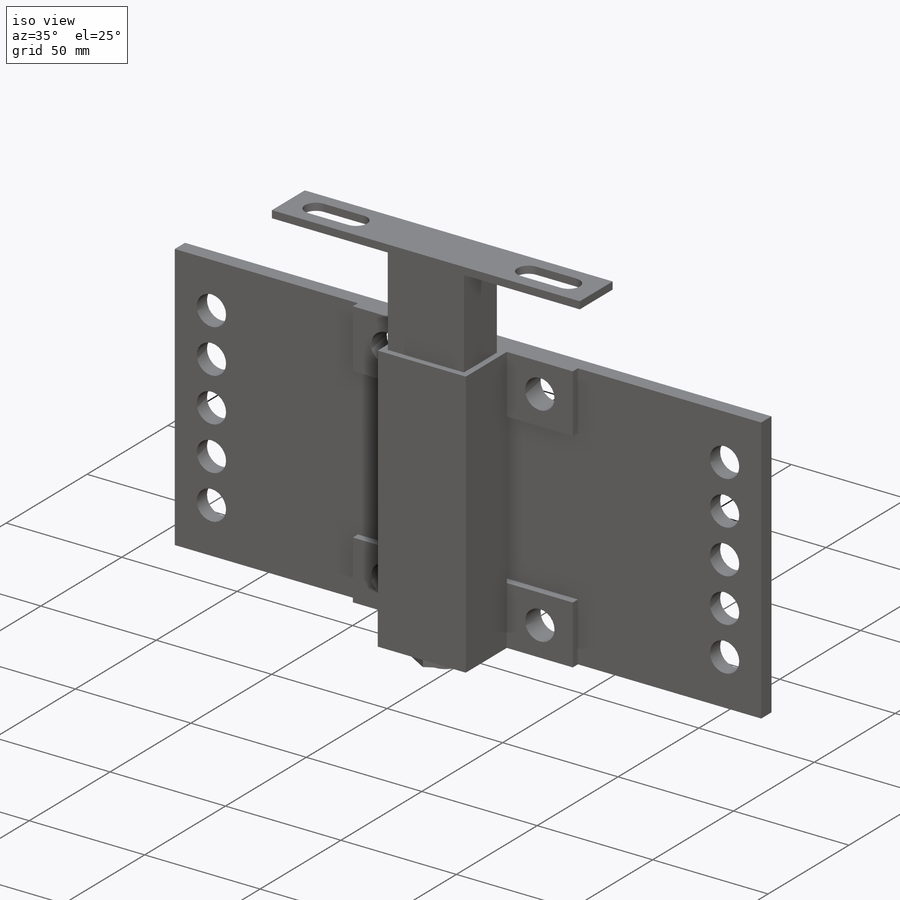
[diagram: iso view]
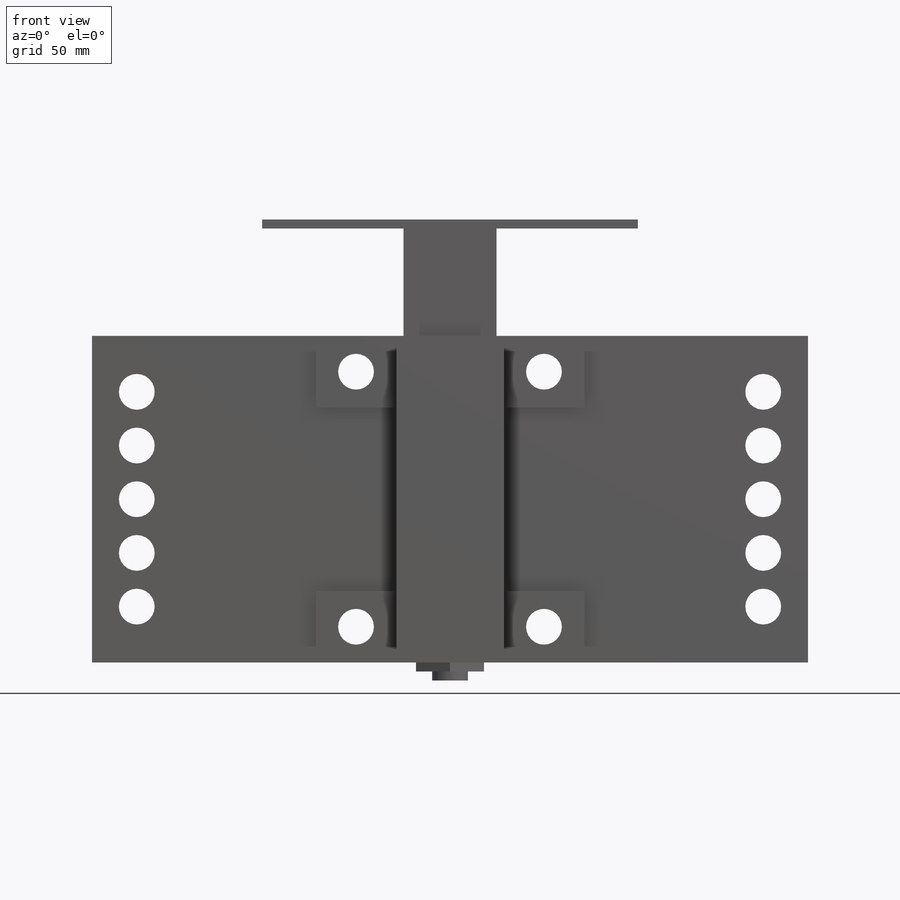
[diagram: front view]
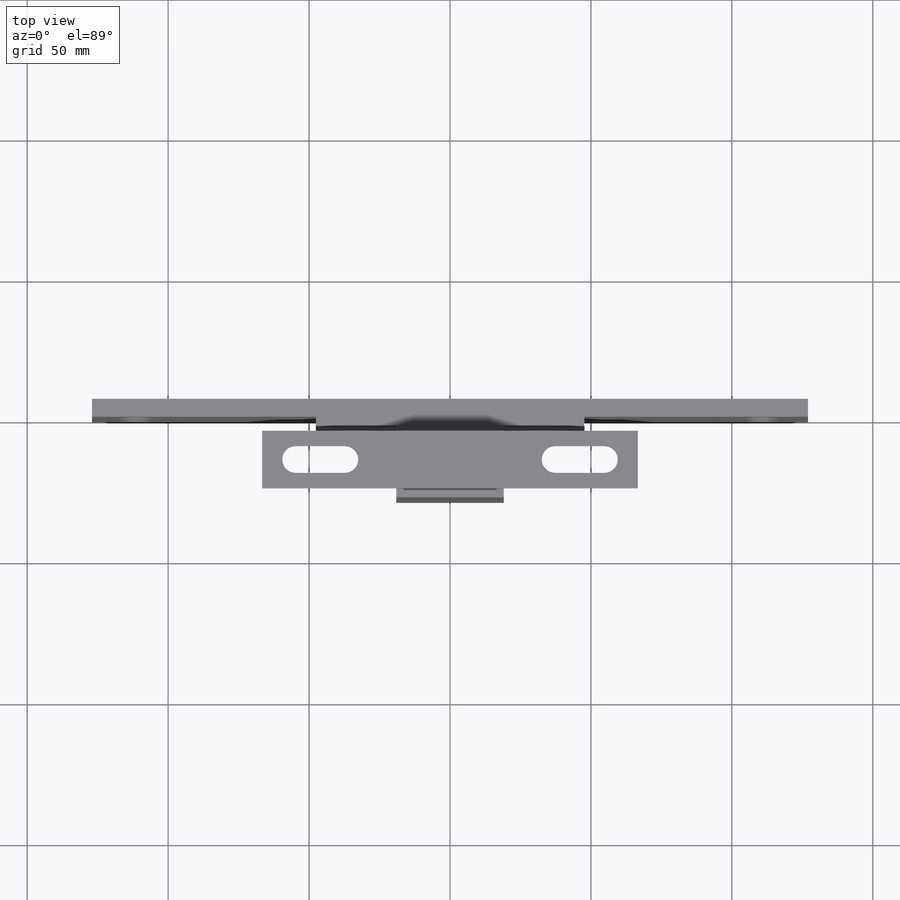
[diagram: top view]
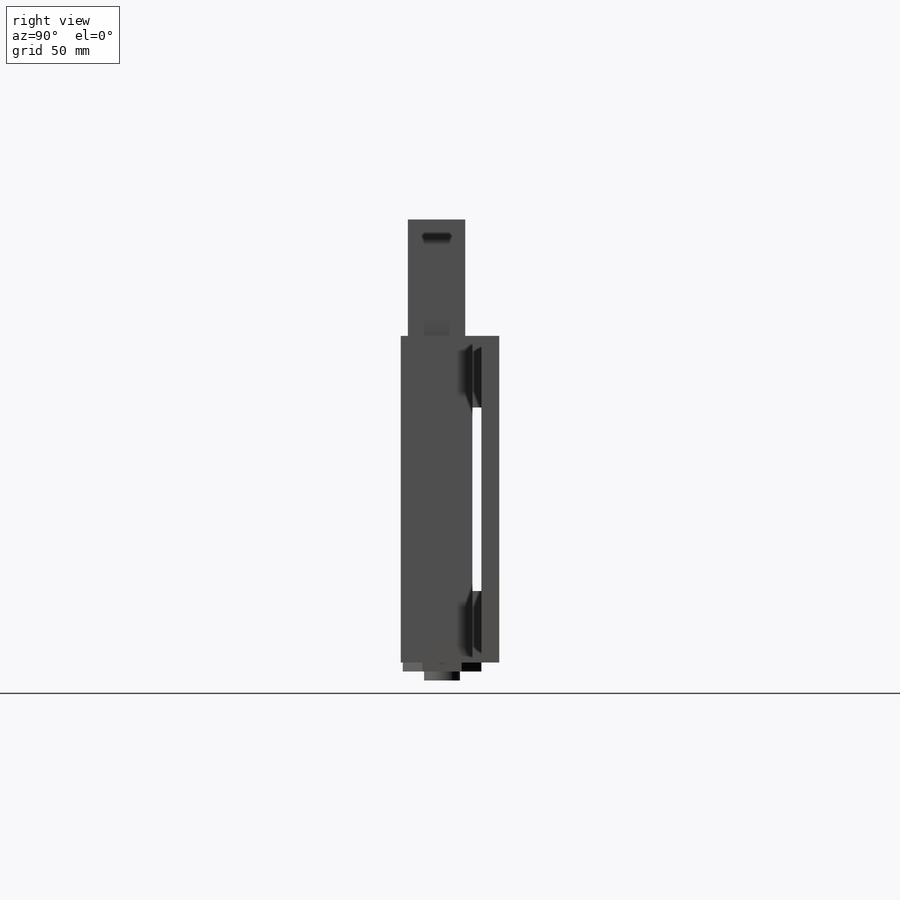
[diagram: right view]
SOLIDWORKS PART (.sldprt)
format: sldprt  version: not decoded by parser v0  size: 337,408 bytes
history: native  units: mm
features: sketch x11, extrude x7, cut_extrude x3, material x1, pattern_linear x1 (+13 scaffold rows collapsed)
feature tree (36):
  scaffold x13  (default folders/planes/origin — collapsed)
  material  "Material <not specified>"
  sketch  "Sketch1"  dims[D1=66.675mm D2=90.4875mm]
  sketch  "Sketch2"  dims[D1=12.7mm D2=95.25mm D3=25.4mm]
  extrude  "Extrude1"  Depth=3.175mm
  sketch  "Sketch3"  dims[D1=38.1mm]
  extrude  "Extrude2"  Depth=25.4mm
  sketch  "Sketch4"  dims[D1=2.54mm]
  extrude  "Extrude3"  Depth=38.1mm
  sketch  "Sketch5"  dims[D1=133.35mm]
  extrude  "Extrude4"  Depth=3.175mm
  sketch  "Sketch6"  dims[D1=9.525mm D2=109.5375mm D3=74.6125mm]
  cut_extrude  "Cut-Extrude1"  [1 undecoded]
  sketch  "Sketch8"  dims[D1=24.13mm]
  extrude  "Extrude5"  Depth=3.175mm
  sketch  "Sketch9"  dims[D1=12.7mm]
  extrude  "Extrude6"  Depth=3.175mm
  sketch  "Sketch10"  dims[D1=254.0mm]
  extrude  "Extrude7"  Depth=6.35mm
  sketch  "Sketch11"
  cut_extrude  "Cut-Extrude2"  [1 undecoded]
  sketch  "Sketch12"  dims[D2=12.7mm D1=15.875mm]
  cut_extrude  "Cut-Extrude3"  [1 undecoded]
  pattern_linear  "LPattern1"  Count1=3 Count2=3 Spacing1=19.05mm Spacing2=19.05mm
decode coverage: 18 of 22 modeling features carry decoded parameters
note: 3 parameter values undecoded
summary: no parameter record found for 3 features
note: suppression state not decoded; provenance and decode notes live in map.json
